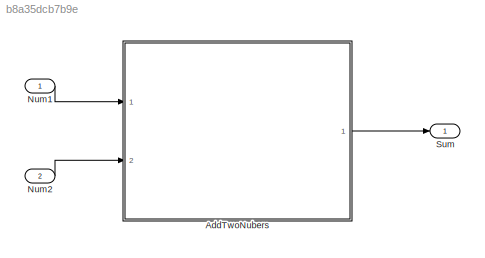
MODEL slx_b8a35dcb7b9e
KIND model
CONFIG AbsTol = auto
CONFIG EnableMultiTasking = off
CONFIG FixedStep = 0.1
CONFIG MaxStep = auto
CONFIG MinStep = auto
CONFIG RelTol = 1e-3
CONFIG SampleTimeConstraint = Unconstrained
CONFIG SolverName = FixedStepDiscrete
CONFIG StartTime = 0.0
CONFIG StopTime = 10.0
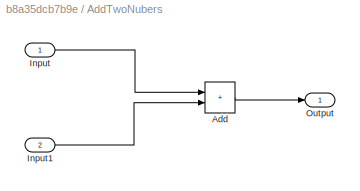
BLOCK [SubSystem] AddTwoNubers
  Ports = [2, 1]
  RequestExecContextInheritance = off
BLOCK [Sum] AddTwoNubers/Add
  IconShape = rectangular
  Ports = [2, 1]
BLOCK [Inport] AddTwoNubers/Input
BLOCK [Inport] AddTwoNubers/Input1
  Port = 2
BLOCK [Outport] AddTwoNubers/Output
BLOCK [Inport] Num1
BLOCK [Inport] Num2
  Port = 2
BLOCK [Outport] Sum
LINE AddTwoNubers/Add:1 -> AddTwoNubers/Output:1
LINE AddTwoNubers/Input1:1 -> AddTwoNubers/Add:2
LINE AddTwoNubers/Input:1 -> AddTwoNubers/Add:1
LINE AddTwoNubers:1 -> Sum:1
LINE Num1:1 -> AddTwoNubers:1
LINE Num2:1 -> AddTwoNubers:2
